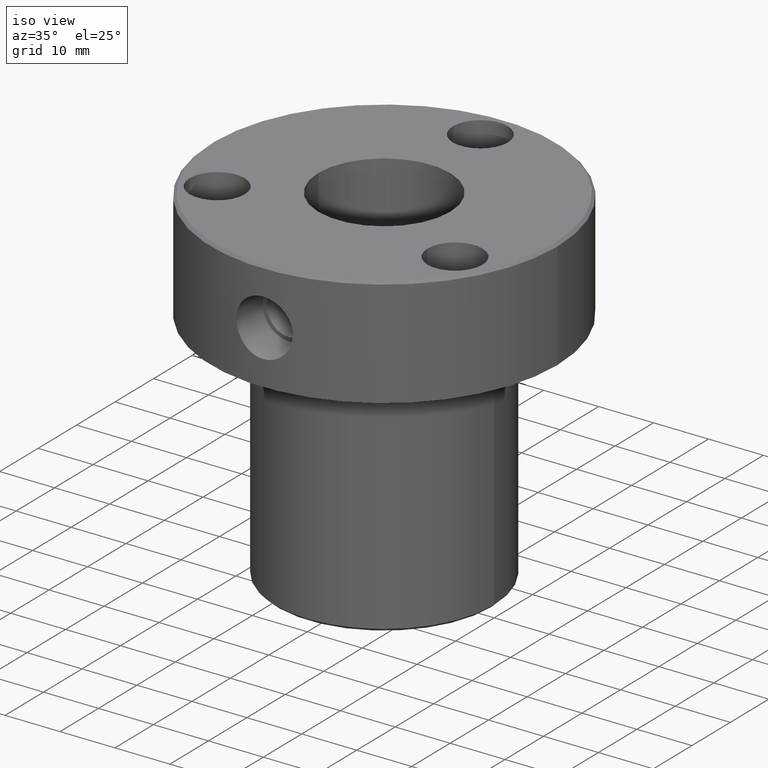
[diagram: clean part render]
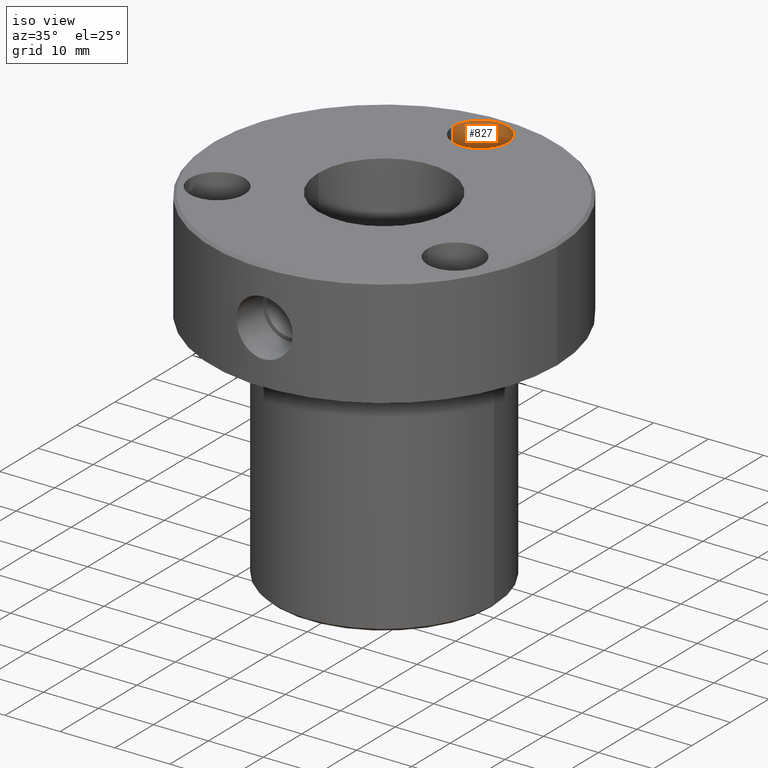
[diagram: same view with one face highlighted and labeled with its STEP entity id]
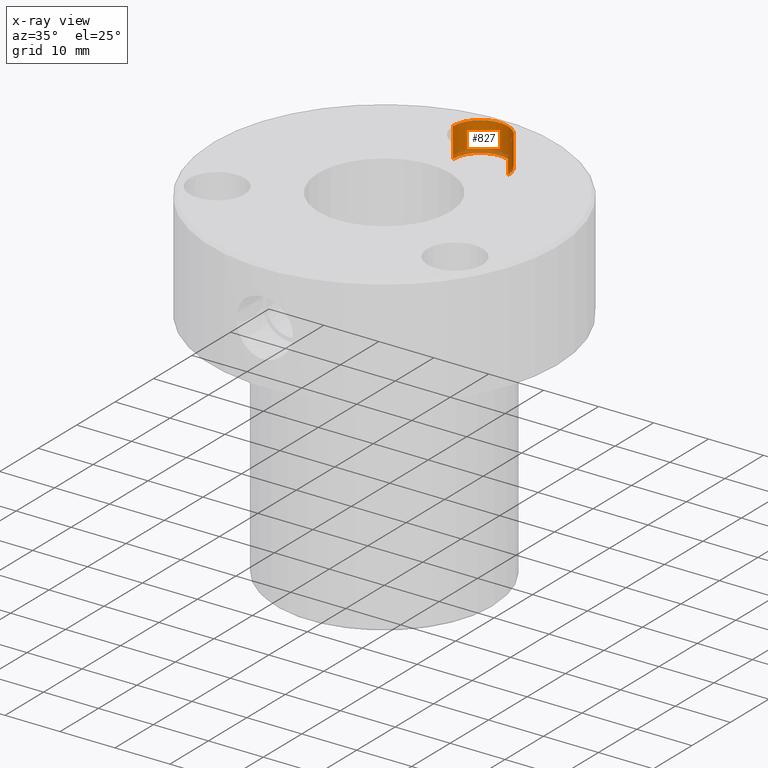
[diagram: x-ray of the same camera — body ghosted, the highlighted face saturated]
A machine part, iso view. The second image highlights one B-rep face of the part: STEP entity #827.
The next image is the same camera in x-ray: the body ghosted, the highlighted face saturated — about 11% of this face is hidden behind the body in this view.
In plain terms, the highlighted cylindrical surface (edge-blend (fillet) strip) has radius 5 mm, axis along (-0, -0, 1).
Its self-contained STEP definition (entity closure, byte-faithful):
#16 = CARTESIAN_POINT ( 'NONE',  ( 4.999999999999999112, 25.00000000000001066, -5.400000000000000355 ) ) ;
#19 = CYLINDRICAL_SURFACE ( 'NONE', #423, 5.000000000000000000 ) ;
#35 = CARTESIAN_POINT ( 'NONE',  ( -5.000000000000000000, 25.00000000000001066, 0.000000000000000000 ) ) ;
#98 = CIRCLE ( 'NONE', #917, 4.999999999999999112 ) ;
#135 = ORIENTED_EDGE ( 'NONE', *, *, #773, .T. ) ;
#220 = VERTEX_POINT ( 'NONE', #986 ) ;
#227 = DIRECTION ( 'NONE',  ( 1.000000000000000000, 0.000000000000000000, 0.000000000000000000 ) ) ;
#269 = CARTESIAN_POINT ( 'NONE',  ( 0.000000000000000000, 25.00000000000001066, -5.400000000000000355 ) ) ;
#273 = ORIENTED_EDGE ( 'NONE', *, *, #978, .T. ) ;
#276 = EDGE_CURVE ( 'NONE', #976, #220, #900, .T. ) ;
#388 = EDGE_CURVE ( 'NONE', #1238, #976, #98, .T. ) ;
#415 = DIRECTION ( 'NONE',  ( 1.000000000000000000, 0.000000000000000000, 0.000000000000000000 ) ) ;
#423 = AXIS2_PLACEMENT_3D ( 'NONE', #427, #1156, #415 ) ;
#427 = CARTESIAN_POINT ( 'NONE',  ( 0.000000000000000000, 25.00000000000001066, 0.000000000000000000 ) ) ;
#432 = DIRECTION ( 'NONE',  ( -0.000000000000000000, -0.000000000000000000, 1.000000000000000000 ) ) ;
#566 = VECTOR ( 'NONE', #593, 1000.000000000000000 ) ;
#578 = VECTOR ( 'NONE', #432, 1000.000000000000000 ) ;
#593 = DIRECTION ( 'NONE',  ( -0.000000000000000000, -0.000000000000000000, 1.000000000000000000 ) ) ;
#613 = CARTESIAN_POINT ( 'NONE',  ( -4.999999999999999112, 25.00000000000001066, -5.400000000000000355 ) ) ;
#621 = DIRECTION ( 'NONE',  ( -0.000000000000000000, -0.000000000000000000, 1.000000000000000000 ) ) ;
#644 = CIRCLE ( 'NONE', #1121, 5.000000000000000888 ) ;
#654 = DIRECTION ( 'NONE',  ( -0.000000000000000000, -0.000000000000000000, 1.000000000000000000 ) ) ;
#693 = CARTESIAN_POINT ( 'NONE',  ( 5.000000000000000888, 25.00000000000001066, 0.000000000000000000 ) ) ;
#711 = CARTESIAN_POINT ( 'NONE',  ( 0.000000000000000000, 25.00000000000001066, 0.000000000000000000 ) ) ;
#731 = ORIENTED_EDGE ( 'NONE', *, *, #276, .F. ) ;
#773 = EDGE_CURVE ( 'NONE', #1238, #1150, #1085, .T. ) ;
#827 = ADVANCED_FACE ( 'NONE', ( #881 ), #19, .F. ) ;
#835 = EDGE_LOOP ( 'NONE', ( #731, #843, #135, #273 ) ) ;
#843 = ORIENTED_EDGE ( 'NONE', *, *, #388, .F. ) ;
#881 = FACE_OUTER_BOUND ( 'NONE', #835, .T. ) ;
#900 = LINE ( 'NONE', #35, #578 ) ;
#917 = AXIS2_PLACEMENT_3D ( 'NONE', #269, #654, #1036 ) ;
#976 = VERTEX_POINT ( 'NONE', #613 ) ;
#978 = EDGE_CURVE ( 'NONE', #1150, #220, #644, .T. ) ;
#986 = CARTESIAN_POINT ( 'NONE',  ( -5.000000000000000888, 25.00000000000001066, 0.000000000000000000 ) ) ;
#1036 = DIRECTION ( 'NONE',  ( 1.000000000000000000, 0.000000000000000000, 0.000000000000000000 ) ) ;
#1085 = LINE ( 'NONE', #1165, #566 ) ;
#1121 = AXIS2_PLACEMENT_3D ( 'NONE', #711, #621, #227 ) ;
#1150 = VERTEX_POINT ( 'NONE', #693 ) ;
#1156 = DIRECTION ( 'NONE',  ( -0.000000000000000000, -0.000000000000000000, 1.000000000000000000 ) ) ;
#1165 = CARTESIAN_POINT ( 'NONE',  ( 5.000000000000000000, 25.00000000000001066, 0.000000000000000000 ) ) ;
#1238 = VERTEX_POINT ( 'NONE', #16 ) ;